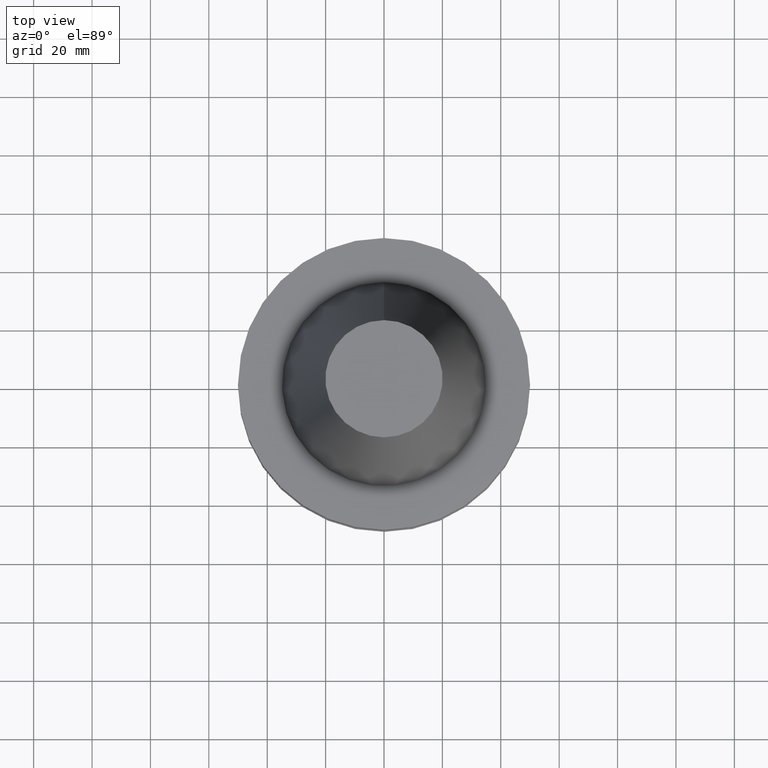
[diagram: clean part render]
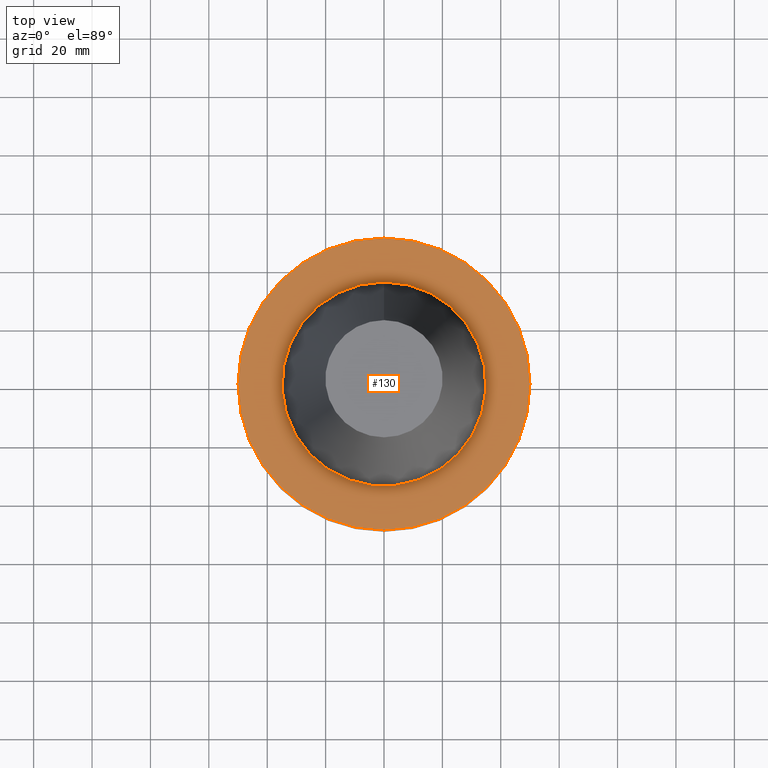
[diagram: same view with one face highlighted and labeled with its STEP entity id]
A machine part, top view. The second image highlights one B-rep face of the part: STEP entity #130.
In plain terms, the highlighted planar face has unit normal (-0, -0, 1).
Its self-contained STEP definition (entity closure, byte-faithful):
#102=EDGE_CURVE('Unnamed[1]',#240,#240,#241,.T.);
#130=ADVANCED_FACE('Unnamed[1]',(#284,#285),#286,.T.);
#155=EDGE_CURVE('Unnamed[1]',#325,#325,#326,.T.);
#240=VERTEX_POINT('',#426);
#241=CIRCLE('',#427,34.925);
#284=FACE_BOUND('',#481,.T.);
#285=FACE_OUTER_BOUND('',#482,.T.);
#286=PLANE('',#483);
#325=VERTEX_POINT('',#532);
#326=CIRCLE('',#533,50.0);
#426=CARTESIAN_POINT('',(9.18485099360511E-017,34.925,-1.5));
#427=AXIS2_PLACEMENT_3D('',#621,#622,#623);
#481=EDGE_LOOP('',(#670));
#482=EDGE_LOOP('',(#671));
#483=AXIS2_PLACEMENT_3D('',#672,#673,#674);
#532=CARTESIAN_POINT('',(9.18485099360509E-017,50.0,-1.49999999999999));
#533=AXIS2_PLACEMENT_3D('',#717,#718,#719);
#621=CARTESIAN_POINT('',(9.18485099360515E-017,1.29959575562706E-014,-1.5));
#622=DIRECTION('',(-6.12323399573677E-017,1.4068406993625E-019,1.0));
#623=DIRECTION('',(-4.81853831597758E-033,1.0,-1.4068406993625E-019));
#670=ORIENTED_EDGE('',*,*,#102,.F.);
#671=ORIENTED_EDGE('',*,*,#155,.T.);
#672=CARTESIAN_POINT('',(9.1848509936051E-017,42.4625,-1.49999999999999));
#673=DIRECTION('',(-6.12323399573677E-017,-1.22464679914735E-016,1.0));
#674=DIRECTION('',(-1.23259516440783E-032,1.0,1.22464679914735E-016));
#717=CARTESIAN_POINT('',(9.18485099360515E-017,1.29959575562706E-014,-1.5));
#718=DIRECTION('',(-6.12323399573677E-017,1.40684069917098E-019,1.0));
#719=DIRECTION('',(-4.81853831597521E-033,1.0,-1.40684069917098E-019));